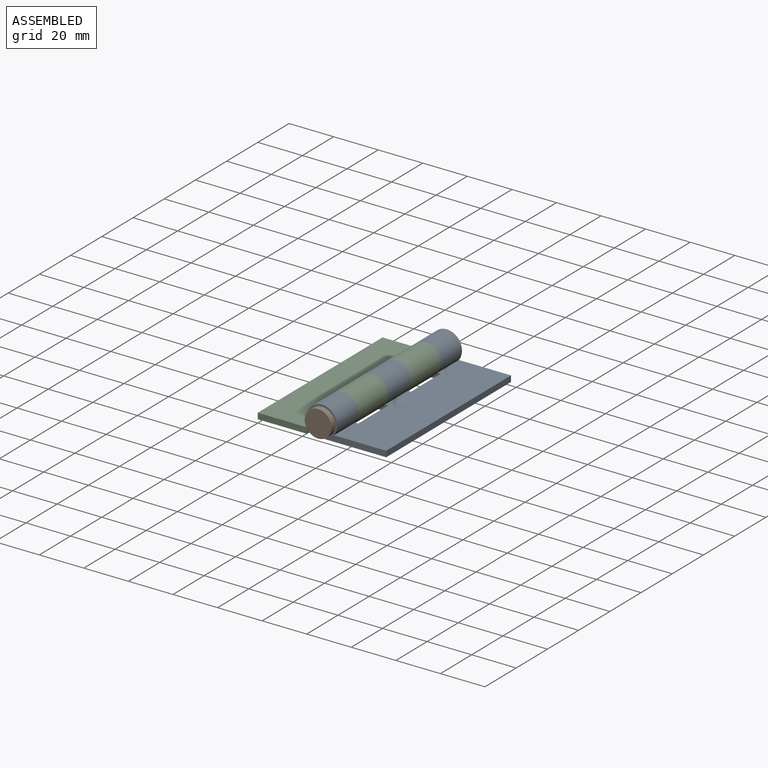
[diagram: assembled view]
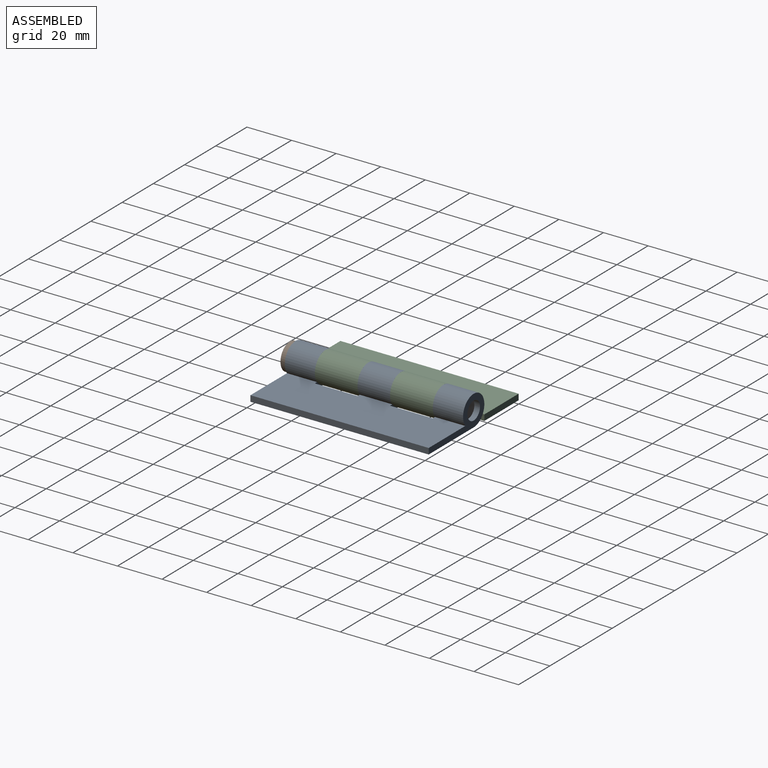
[diagram: assembled view, second angle]
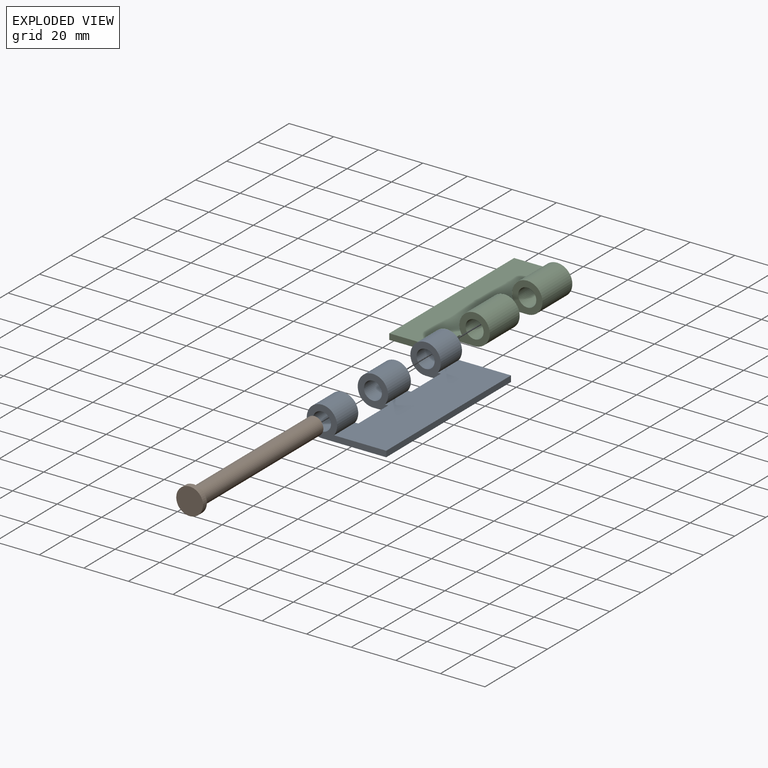
[diagram: exploded view]
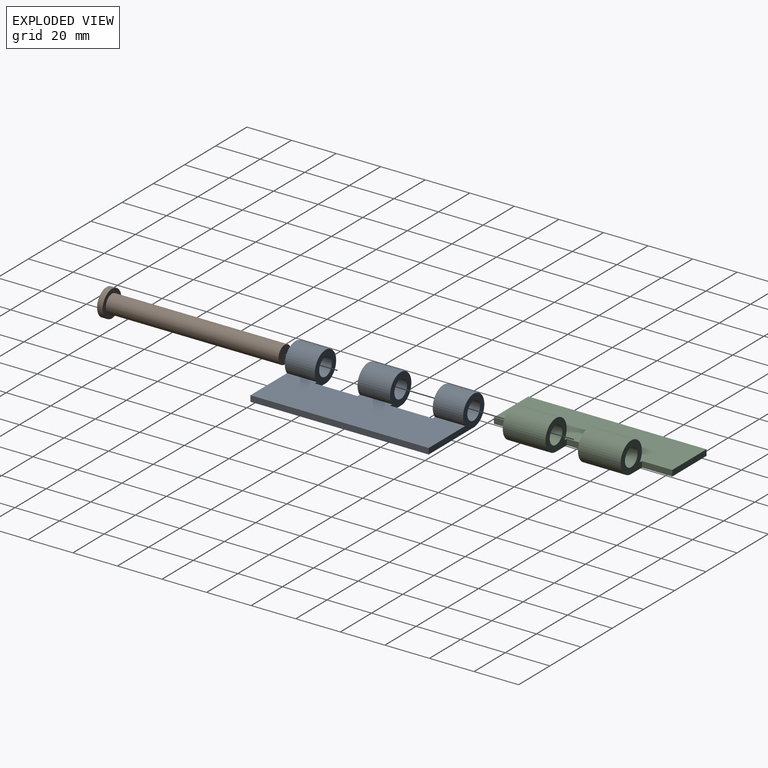
[diagram: exploded view, second angle]
ASSEMBLY  parts=3 mates=2
PART A: 17 faces, bbox 35.7x80x13.7 mm
  f0: plane 80x28.83mm, normal (0,0,-1), area 2044.6mm2, adj f2,f3,f5,f6,f8,f9,f10,f11
  f1: plane 80x23.43mm, normal (0,0,1), area 1819.5mm2, adj f2,f3,f5,f6,f8,f9,f10,f11
  f2: cylinder r=6.83mm len=14.6mm, axis (0,-1,0), area 535.2mm2, adj f0,f1,f12,f15
  f3: cylinder r=6.83mm len=13.65mm, axis (0,-1,0), area 494.8mm2, adj f0,f1,f9,f11
  f4: cylinder r=4.05mm len=13.5mm, axis (0,-1,0), area 343.5mm2, adj f9,f11
  f5: plane 80x2.65mm, normal (1,0,0), area 212mm2, adj f0,f1,f8,f9
  f6: cylinder r=6.83mm len=13.65mm, axis (0,-1,0), area 498.5mm2, adj f0,f1,f8,f14
  f7: cylinder r=4.05mm len=13.6mm, axis (0,-1,0), area 346.1mm2, adj f8,f14
  f8: plane 35.65x13.65mm, normal (0,1,0), area 161.2mm2, adj f0,f1,f5,f6,f7
  f9: plane 35.65x13.65mm, normal (0,-1,0), area 161.2mm2, adj f0,f1,f3,f4,f5
  f10: plane 19.15x2.65mm, normal (-1,0,0), area 50.7mm2, adj f0,f1,f11,f12
  f11: plane 13.65x13.65mm, normal (0,1,0), area 102.9mm2, adj f0,f1,f3,f4,f10
  f12: plane 13.65x13.65mm, normal (0,-1,0), area 102.9mm2, adj f0,f1,f2,f10,f16
  f13: plane 19.15x2.65mm, normal (-1,0,0), area 50.7mm2, adj f0,f1,f14,f15
  f14: plane 13.65x13.65mm, normal (0,-1,0), area 102.9mm2, adj f0,f1,f6,f7,f13
  f15: plane 13.65x13.65mm, normal (0,1,0), area 102.9mm2, adj f0,f1,f2,f13,f16
  f16: cylinder r=4.05mm len=14.6mm, axis (0,-1,0), area 371.5mm2, adj f12,f15
PART B: 5 faces, bbox 12x80x12 mm
  f0: cylinder r=4mm len=77.5mm, axis (0,1,0), area 1947.8mm2, adj f1,f4
  f1: plane 8x8mm, normal (0,1,0), area 50.3mm2, adj f0
  f2: cylinder r=6mm len=12mm, axis (0,1,0), area 94.2mm2, adj f3,f4
  f3: plane 12x12mm, normal (0,-1,0), area 113.1mm2, adj f2
  f4: plane 12x12mm, normal (0,1,0), area 62.8mm2, adj f0,f2
PART C: 16 faces, bbox 35.7x80x13.7 mm
  f0: cylinder r=6.83mm len=19.15mm, axis (0,-1,0), area 701.9mm2, adj f2,f3,f9,f12
  f1: cylinder r=6.83mm len=19.15mm, axis (0,-1,0), area 701.9mm2, adj f2,f3,f7,f10
  f2: plane 80x23.43mm, normal (0,0,1), area 1814.6mm2, adj f0,f1,f4,f5,f6,f7,f8,f9
  f3: plane 80x28.83mm, normal (0,0,-1), area 2021.4mm2, adj f0,f1,f4,f5,f6,f7,f8,f9
  f4: plane 22x2.65mm, normal (0,1,0), area 58.3mm2, adj f2,f3,f6,f13
  f5: plane 22x2.65mm, normal (0,-1,0), area 58.3mm2, adj f2,f3,f6,f8
  f6: plane 80x2.65mm, normal (-1,0,0), area 212mm2, adj f2,f3,f4,f5
  f7: plane 13.65x13.65mm, normal (0,-1,0), area 102.9mm2, adj f1,f2,f3,f8,f14
  f8: plane 13.5x2.65mm, normal (1,0,0), area 35.8mm2, adj f2,f3,f5,f7
  f9: plane 13.65x13.65mm, normal (0,-1,0), area 102.9mm2, adj f0,f2,f3,f11,f15
  f10: plane 13.65x13.65mm, normal (0,1,0), area 102.9mm2, adj f1,f2,f3,f11,f14
  f11: plane 14.6x2.65mm, normal (1,0,0), area 38.7mm2, adj f2,f3,f9,f10
  f12: plane 13.65x13.65mm, normal (0,1,0), area 102.9mm2, adj f0,f2,f3,f13,f15
  f13: plane 13.6x2.65mm, normal (1,0,0), area 36mm2, adj f2,f3,f4,f12
  f14: cylinder r=4.05mm len=19.15mm, axis (0,-1,0), area 487.3mm2, adj f7,f10
  f15: cylinder r=4.05mm len=19.15mm, axis (0,-1,0), area 487.3mm2, adj f9,f12
PLACE A t=(57.65,0,0)mm
PLACE B t=(28.82,77.5,6.83)mm
PLACE C at identity
MATE revolute A.f2 <-> C.f0  axis (0,-1,0) through (28.82,66.4,6.83)mm
MATE fastened B.f0 <-> A.f2  axis (0,1,0) through (28.82,0,6.82)mm
